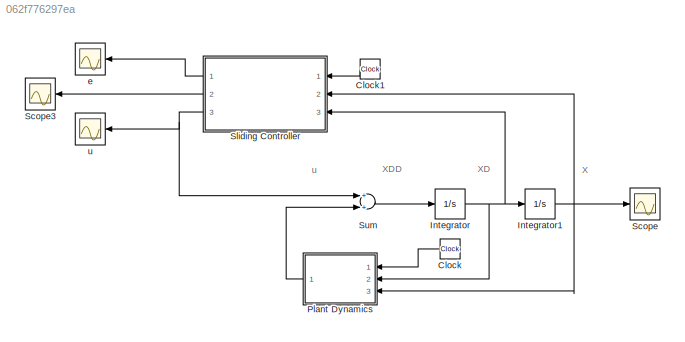
MODEL slx_062f776297ea
KIND model
CONFIG AbsTol = auto
CONFIG EnableMultiTasking = off
CONFIG FixedStep = 0.001
CONFIG MaxStep = 0.001
CONFIG MinStep = auto
CONFIG RelTol = 1e-3
CONFIG SampleTimeConstraint = Unconstrained
CONFIG Solver = VariableStepAuto
CONFIG SolverName = VariableStepAuto
CONFIG StartTime = 0.0
CONFIG StopTime = 4
BLOCK [Clock] Clock
BLOCK [Clock] Clock1
BLOCK [Integrator] Integrator
  InitialCondition = 1.5708
  Ports = [1, 1]
BLOCK [Integrator] Integrator1
  Ports = [1, 1]
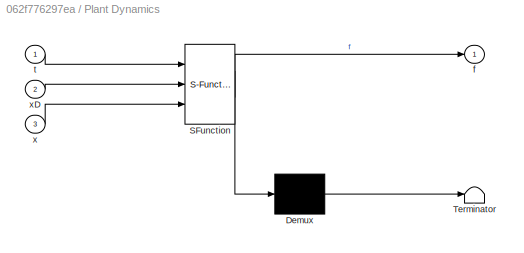
BLOCK [SubSystem] Plant Dynamics
  ErrorFcn = Stateflow.Translate.translate
  PermitHierarchicalResolution = ExplicitOnly
  Ports = [3, 1]
  RequestExecContextInheritance = off
  SFBlockType = MATLAB Function
  TreatAsAtomicUnit = on
  Variant = off
BLOCK [Demux] Plant Dynamics/ Demux 
  Outputs = 1
  Ports = [1, 1]
BLOCK [S-Function] Plant Dynamics/ SFunction 
  EnableBusSupport = on
  FunctionName = sf_sfun
  PortCounts = [3 2]
  Ports = [3, 2]
  SFcnIsStateOwnerBlock = off
  SFunctionDeploymentMode = off
  Tag = Stateflow S-Function sliding_model 2
BLOCK [Terminator] Plant Dynamics/ Terminator 
BLOCK [Outport] Plant Dynamics/f
  IconDisplay = Port number
BLOCK [Inport] Plant Dynamics/t
  IconDisplay = Port number
BLOCK [Inport] Plant Dynamics/x
  IconDisplay = Port number
  Port = 3
BLOCK [Inport] Plant Dynamics/xD
  IconDisplay = Port number
  Port = 2
BLOCK [Scope] Scope
  NumInputPorts = 1
  Ports = [1]
  ScopeSpecificationString = Simulink.scopes.TimeScopeBlockCfg('CurrentConfiguration', extmgr.ConfigurationSet(extmgr.Configuration('Core','General UI',true),extmgr.Configuration('Core','Source UI',true),extmgr.Configuration('Sources','WiredSimulink',true),extmgr.Configuration('Visuals','Time Domain',true,'SerializedDisplays',{struct('MinYLimReal','-1.25','MaxYLimReal','1.25','YLabelReal','','MinYLimMag','0.00000','MaxYLimMag...<+1313ch>
BLOCK [Scope] Scope3
  NumInputPorts = 1
  Ports = [1]
  ScopeSpecificationString = Simulink.scopes.TimeScopeBlockCfg('CurrentConfiguration', extmgr.ConfigurationSet(extmgr.Configuration('Core','General UI',true),extmgr.Configuration('Core','Source UI',true),extmgr.Configuration('Sources','WiredSimulink',true,'DataLoggingVariableName','ScopeData3'),extmgr.Configuration('Visuals','Time Domain',true,'SerializedDisplays',{struct('MinYLimReal','-0.06688','MaxYLimReal','0.37662','YLab...<+1408ch>
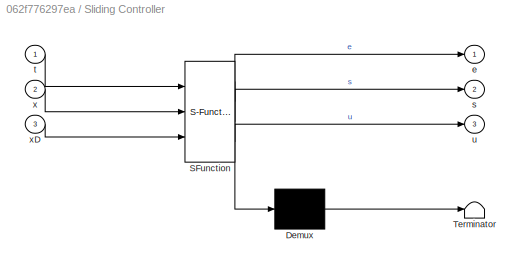
BLOCK [SubSystem] Sliding Controller
  ErrorFcn = Stateflow.Translate.translate
  PermitHierarchicalResolution = ExplicitOnly
  Ports = [3, 3]
  RequestExecContextInheritance = off
  SFBlockType = MATLAB Function
  TreatAsAtomicUnit = on
  Variant = off
BLOCK [Demux] Sliding Controller/ Demux 
  Outputs = 1
  Ports = [1, 1]
BLOCK [S-Function] Sliding Controller/ SFunction 
  EnableBusSupport = on
  FunctionName = sf_sfun
  PortCounts = [3 4]
  Ports = [3, 4]
  SFcnIsStateOwnerBlock = off
  SFunctionDeploymentMode = off
  Tag = Stateflow S-Function sliding_model 1
BLOCK [Terminator] Sliding Controller/ Terminator 
BLOCK [Outport] Sliding Controller/e
  IconDisplay = Port number
BLOCK [Outport] Sliding Controller/s
  IconDisplay = Port number
  Port = 2
BLOCK [Inport] Sliding Controller/t
  IconDisplay = Port number
BLOCK [Outport] Sliding Controller/u
  IconDisplay = Port number
  Port = 3
BLOCK [Inport] Sliding Controller/x
  IconDisplay = Port number
  Port = 2
BLOCK [Inport] Sliding Controller/xD
  IconDisplay = Port number
  Port = 3
BLOCK [Sum] Sum
  InputSameDT = off
  OutDataTypeStr = Inherit: Inherit via internal rule
  Ports = [2, 1]
  SaturateOnIntegerOverflow = off
BLOCK [Scope] e
  NumInputPorts = 1
  Ports = [1]
  ScopeSpecificationString = Simulink.scopes.TimeScopeBlockCfg('CurrentConfiguration', extmgr.ConfigurationSet(extmgr.Configuration('Core','General UI',true),extmgr.Configuration('Core','Source UI',true),extmgr.Configuration('Sources','WiredSimulink',true,'DataLoggingVariableName','e','DataLogging',true,'DataLoggingSaveFormat','Array'),extmgr.Configuration('Visuals','Time Domain',true,'SerializedDisplays',{struct('MinYLimReal...<+1450ch>
BLOCK [Scope] u
  NumInputPorts = 1
  Ports = [1]
  ScopeSpecificationString = Simulink.scopes.TimeScopeBlockCfg('CurrentConfiguration', extmgr.ConfigurationSet(extmgr.Configuration('Core','General UI',true),extmgr.Configuration('Core','Source UI',true),extmgr.Configuration('Sources','WiredSimulink',true,'DataLoggingVariableName','u','DataLogging',true,'DataLoggingSaveFormat','Array'),extmgr.Configuration('Visuals','Time Domain',true,'SerializedDisplays',{struct('MinYLimReal...<+1450ch>
ANNOTATION (root): X
ANNOTATION (root): XD
ANNOTATION (root): XDD
ANNOTATION (root): u
LINE Clock1:1 -> Sliding Controller:1
LINE Clock:1 -> Plant Dynamics:1
NET Integrator1:1 -> Plant Dynamics:3, Scope:1, Sliding Controller:2
NET Integrator:1 -> Integrator1:1, Plant Dynamics:2, Sliding Controller:3
LINE Plant Dynamics:1 -> Sum:2
LINE Sliding Controller:1 -> e:1
LINE Sliding Controller:2 -> Scope3:1
NET Sliding Controller:3 -> Sum:1, u:1
LINE Sum:1 -> Integrator:1
note: NET lines group one-source signal fan-out (src -> all destinations, sorted); 1:1 wires keep LINE
CHART Sliding Controller states=1 transitions=1
  STATE_LABEL 'eML_blk_kernel()'
  STATE_LABEL 'SCRIPT:\nfunction [e,s,u] = fcn(t, x,xD)\n\n    % parameters\n    lambda = 20;\n    eta = 0.1;\n\n    % desired trajectory\n    xd = sin(pi*t/2);\n    xdD = (pi/2)*cos(pi*t/2);\n    xdDD = -(pi/2)^2*sin(pi*t/2);\n    \n    % tracking error and derivatives\n    e = x-xd;\n    eD = xD-xdD;\n    \n    % nominal control\n    uhat = 1.5*xD^2*cos(3*x)+xdDD-lambda*eD;\n    \n    % switching magnitude\n    k = 0.5*xD^2*abs(c...<+121ch>'
CHART Plant Dynamics states=1 transitions=1
  STATE_LABEL 'eML_blk_kernel()'
  STATE_LABEL 'SCRIPT:\nfunction f = fcn(t,xD,x)\n\n    % uncertainty\n    a = 1 + abs(sin(t));\n    \n    % nonlinearity\n    f = -a*xD^2*cos(3*x);\n    \nend'
